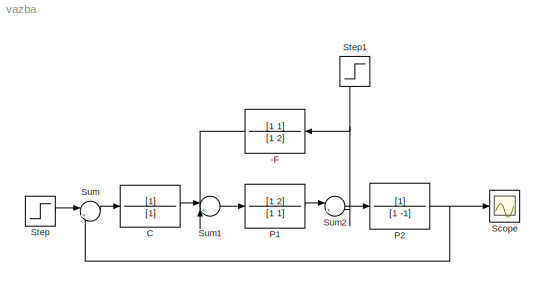
MODEL vazba
KIND model
BLOCK [TransferFcn] -F
  Denominator = [1 2]
  Numerator = [1 1]
  SID = 7
BLOCK [TransferFcn] C
  Denominator = [1]
  SID = 2
BLOCK [TransferFcn] P1
  Denominator = [1 1]
  Numerator = [1 2]
  SID = 5
BLOCK [TransferFcn] P2
  Denominator = [1 -1]
  SID = 6
BLOCK [Scope] Scope
  DataFormat = StructureWithTime
  Floating = off
  NumInputPorts = 1
  Ports = [1]
  SID = 1
  SampleTime = 0
BLOCK [Step] Step
  SID = 4
  SampleTime = 0
BLOCK [Step] Step1
  SID = 11
  SampleTime = 0
  Time = 5
BLOCK [Sum] Sum
  IconShape = round
  InputSameDT = off
  Inputs = |+-
  OutDataType = fixdt(1, 16)
  OutDataTypeMode = Inherit via internal rule
  OutDataTypeStr = Inherit: Inherit via internal rule
  OutScaling = 2^0
  Ports = [2, 1]
  SID = 3
  SaturateOnIntegerOverflow = off
BLOCK [Sum] Sum1
  IconShape = round
  InputSameDT = off
  Inputs = |++
  OutDataType = fixdt(1, 16)
  OutDataTypeMode = Inherit via internal rule
  OutDataTypeStr = Inherit: Inherit via internal rule
  OutScaling = 2^0
  Ports = [2, 1]
  SID = 9
  SaturateOnIntegerOverflow = off
BLOCK [Sum] Sum2
  IconShape = round
  InputSameDT = off
  Inputs = |++
  OutDataType = fixdt(1, 16)
  OutDataTypeMode = Inherit via internal rule
  OutDataTypeStr = Inherit: Inherit via internal rule
  OutScaling = 2^0
  Ports = [2, 1]
  SID = 10
  SaturateOnIntegerOverflow = off
LINE -F:1 -> Sum1:2
LINE C:1 -> Sum1:1
LINE P1:1 -> Sum2:1
NET P2:1 -> Scope:1, Sum:2
NET Step1:1 -> -F:1, Sum2:2
LINE Step:1 -> Sum:1
LINE Sum1:1 -> P1:1
LINE Sum2:1 -> P2:1
LINE Sum:1 -> C:1
note: NET lines group one-source signal fan-out (src -> all destinations, sorted); 1:1 wires keep LINE
